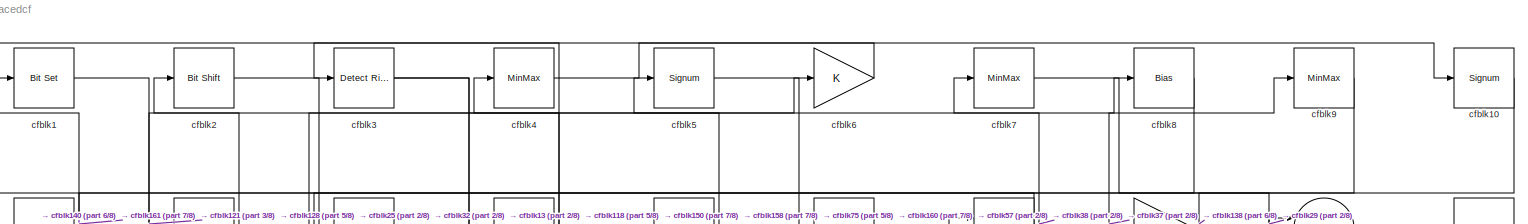
[diagram: root canvas - part 1/8, full width, top band]
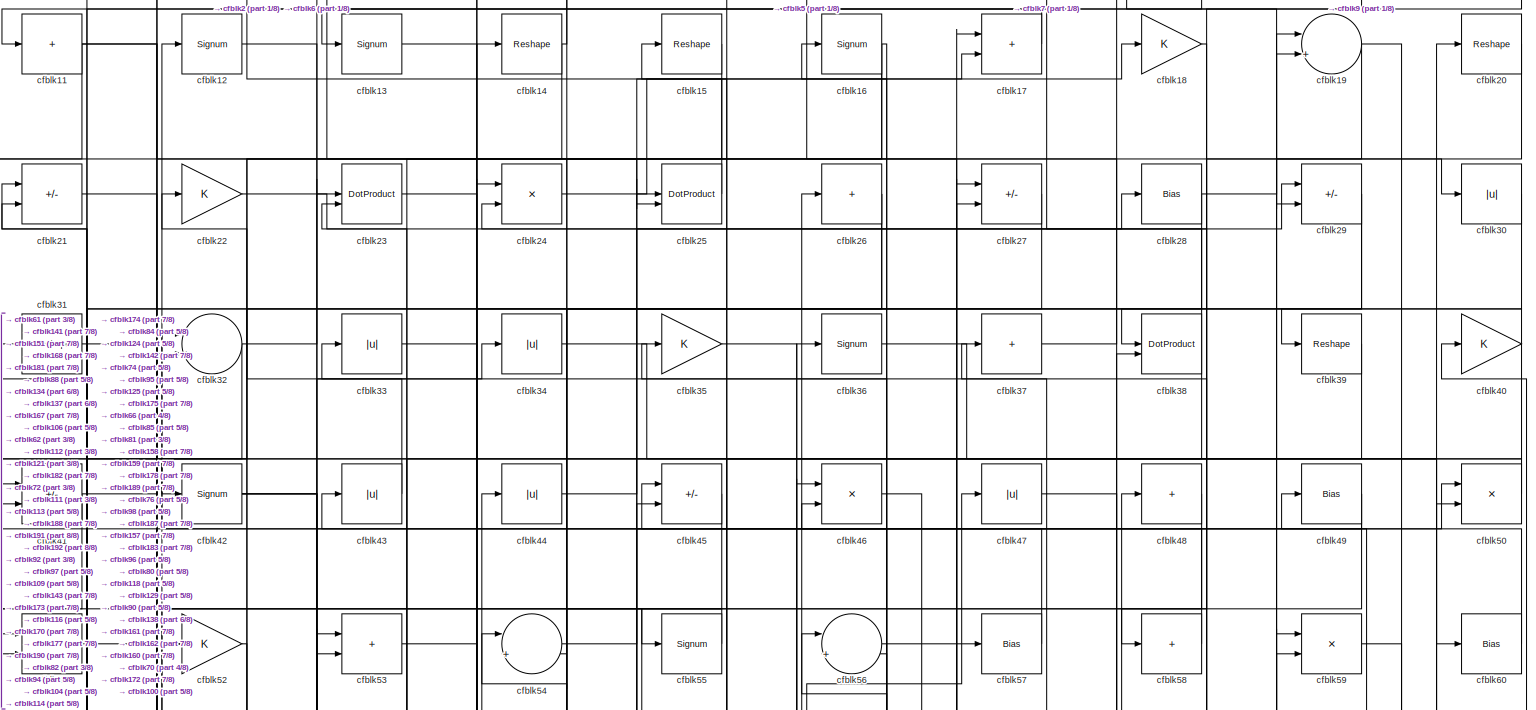
[diagram: root canvas - part 2/8, full width, top band]
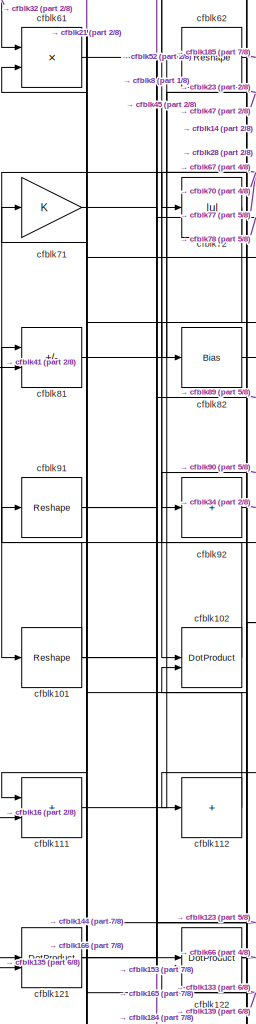
[diagram: root canvas - part 3/8, middle left region]
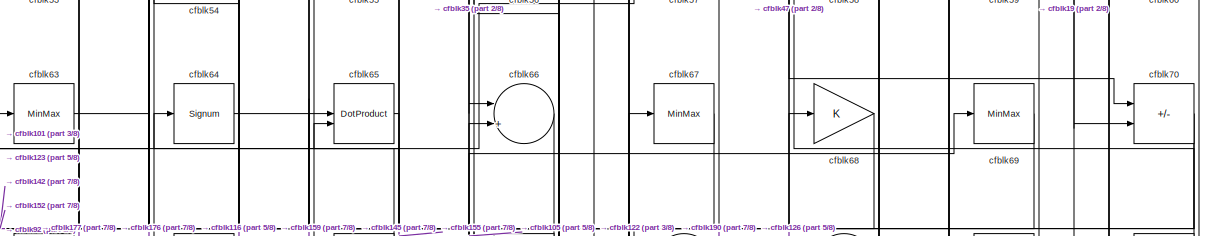
[diagram: root canvas - part 4/8, full width, top band]
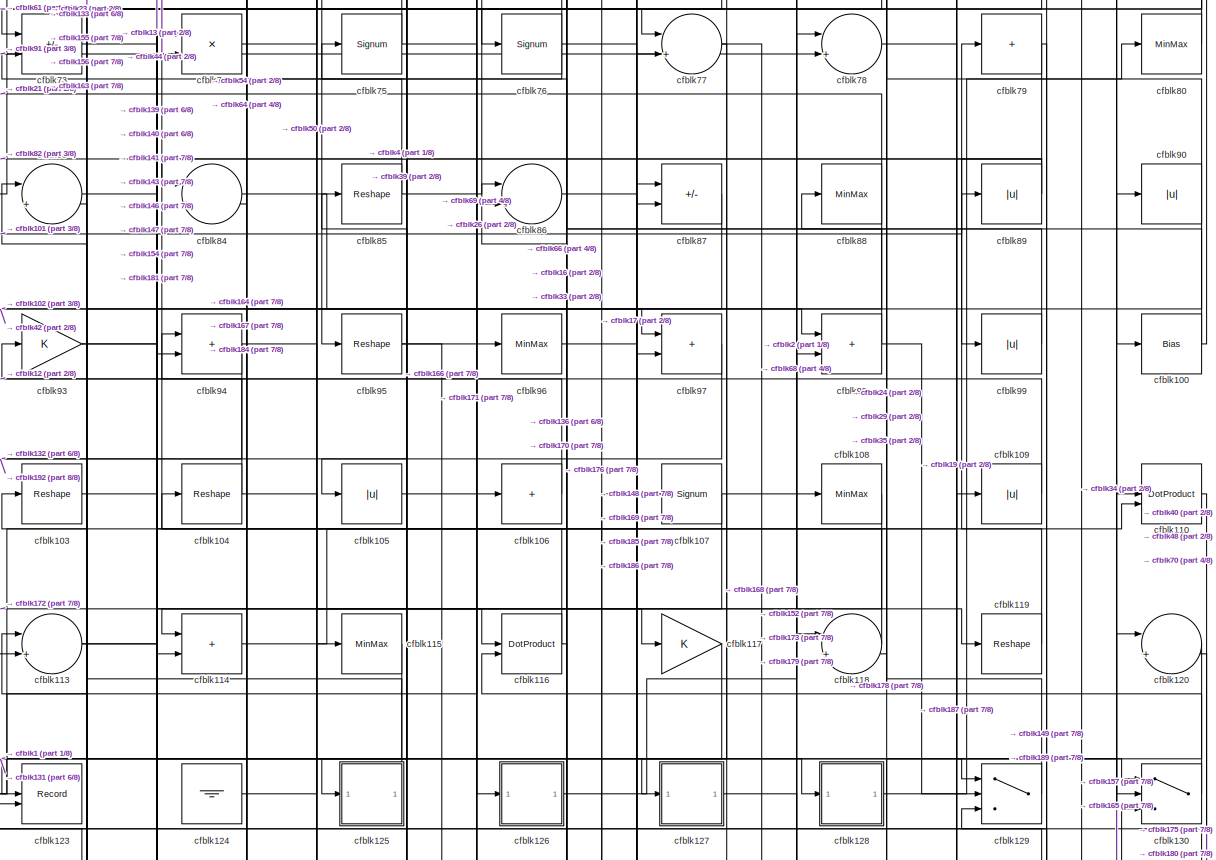
[diagram: root canvas - part 5/8, full width, middle band]
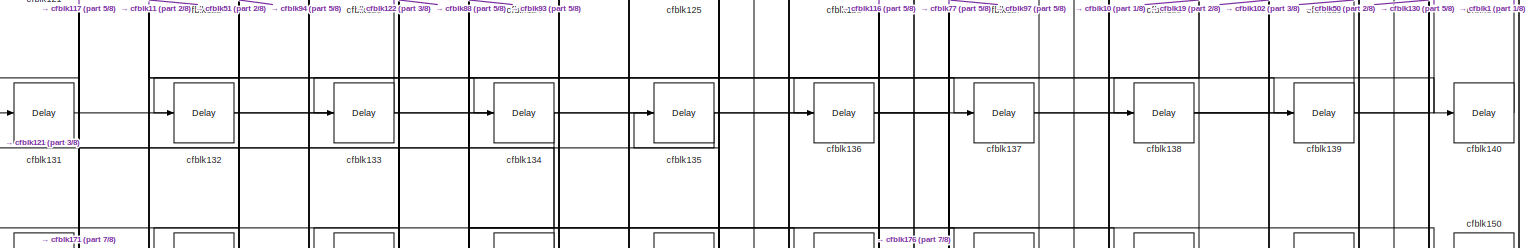
[diagram: root canvas - part 6/8, full width, bottom band]
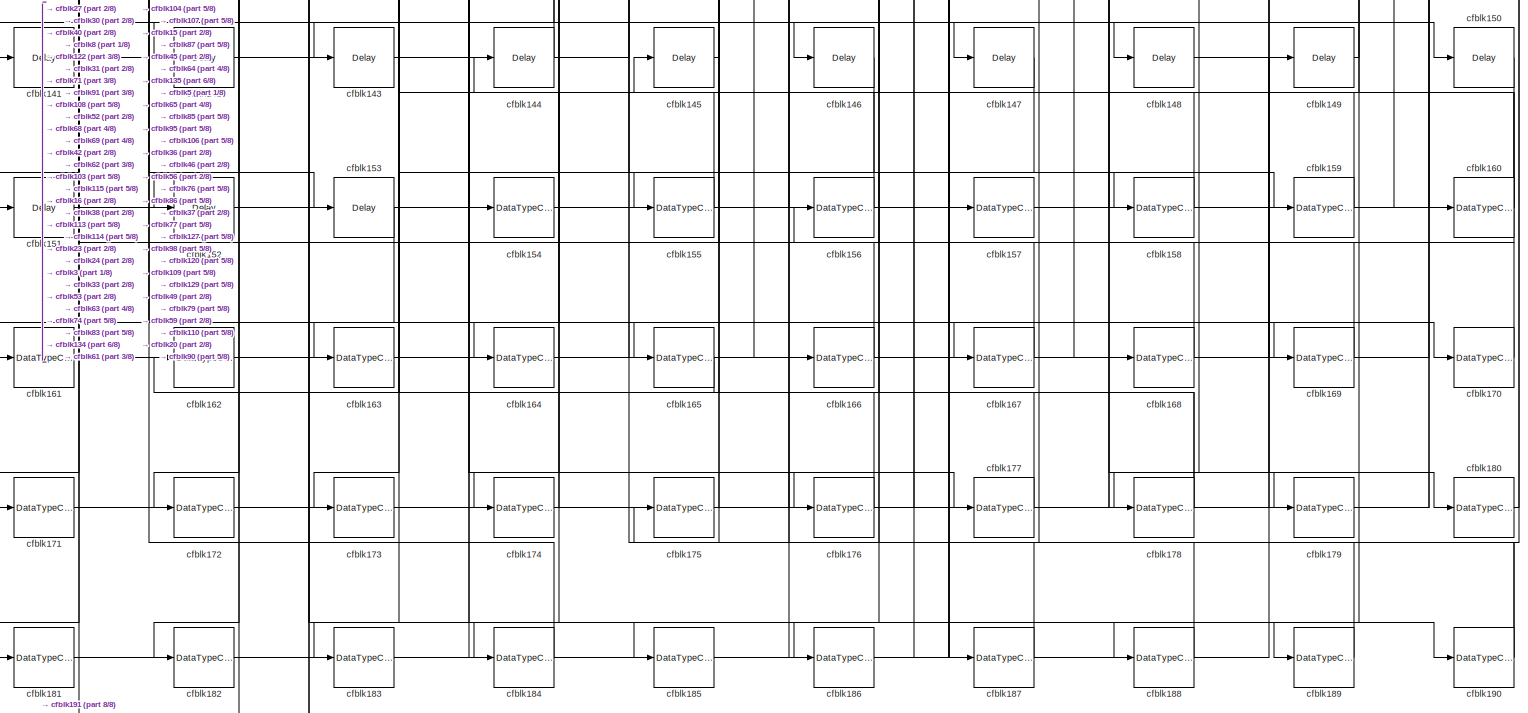
[diagram: root canvas - part 7/8, full width, bottom band]
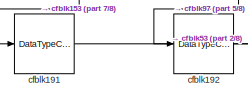
[diagram: root canvas - part 8/8, bottom left region]
MODEL slx_7cf879acedcf
KIND model
CONFIG AbsTol = auto
CONFIG EnableMultiTasking = off
CONFIG FixedStep = auto
CONFIG MaxStep = auto
CONFIG MinStep = auto
CONFIG RelTol = 1e-3
CONFIG SampleTimeConstraint = Unconstrained
CONFIG SolverName = VariableStepAuto
CONFIG StartTime = 0.0
CONFIG StopTime = 10.0
BLOCK [Reference] cfblk1  REF=simulink/Logic and Bit
Operations/Bit Set
  LibrarySourceBlock = hdlsllib/Logic and Bit\nOperations/Bit Set
  SourceBlock = simulink/Logic and Bit\nOperations/Bit Set
  SourceType = Bit Set
BLOCK [Signum] cfblk10
BLOCK [Bias] cfblk100
  Bias = 0.0
  SaturateOnIntegerOverflow = off
BLOCK [Reshape] cfblk101
BLOCK [DotProduct] cfblk102
  OutDataTypeStr = Inherit: Inherit via internal rule
BLOCK [Reshape] cfblk103
BLOCK [Reshape] cfblk104
BLOCK [Abs] cfblk105
  SaturateOnIntegerOverflow = off
BLOCK [Sum] cfblk106
  IconShape = rectangular
  Inputs = +
BLOCK [Signum] cfblk107
BLOCK [MinMax] cfblk108
BLOCK [Abs] cfblk109
  SaturateOnIntegerOverflow = off
BLOCK [Sum] cfblk11
  IconShape = rectangular
  Inputs = +
BLOCK [DotProduct] cfblk110
  OutDataTypeStr = Inherit: Inherit via internal rule
BLOCK [Sum] cfblk111
  IconShape = rectangular
BLOCK [Sum] cfblk112
  IconShape = rectangular
  Inputs = +
BLOCK [Sum] cfblk113
  Inputs = |++
BLOCK [Sum] cfblk114
  IconShape = rectangular
BLOCK [MinMax] cfblk115
BLOCK [DotProduct] cfblk116
  OutDataTypeStr = Inherit: Inherit via internal rule
BLOCK [Gain] cfblk117
BLOCK [Sum] cfblk118
  Inputs = |++
BLOCK [Reshape] cfblk119
BLOCK [Signum] cfblk12
BLOCK [Sum] cfblk120
  Inputs = |++
BLOCK [DotProduct] cfblk121
  OutDataTypeStr = Inherit: Inherit via internal rule
BLOCK [DotProduct] cfblk122
  OutDataTypeStr = Inherit: Inherit via internal rule
BLOCK [Record] cfblk123
  CompatibilityTag = XY
  FileSettingsInternal = {"entries":[{"content":{"excelSettings":{"content":{},"type":"Streamout.ExcelSettings"}},"type":"Streamout.FileSettingStorage","uuid":""}],"packageUris":["http:\/\/schema.mathworks.com\/mf0\/streamout_blocks\/R2020a"],"version":"1.0"}
  Layout = [1 1]
  SignalsInternal = {"entries":[{"content":{"signals":[{"content":{"blockPath":[],"dimensions":[1],"domain":"","lineColor":"#a2142f","plots":[1],"port":1,"signalID":5757,"signalName":"XY Graph:1"},"type":"RecordBlkView.Signal","uuid":""},{"content":{"blockPath":[],"dimensions":[1],"domain":"","lineColor":"#139fff","plots":[1],"port":2,"signalID":5760,"signalName":"XY Graph:2"},"type":"RecordBlkView.Signal","uuid":""}...<+146ch>
  VisualizationBindings = {"xyplotplugin":{"info":[{"series":[{"bindingParametersList":[{"parameter":"X-Axis","signalID":5757,"signalName":"XY Graph:1"},{"parameter":"Y-Axis","signalID":5760,"signalName":"XY Graph:2"}],"seriesID":6724}],"subplotID":1}]}}
  st = -1
BLOCK [Ground] cfblk124
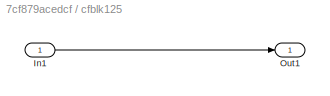
BLOCK [SubSystem] cfblk125
  LibrarySourceBlock = hdlsllib/Ports &\nSubsystems/Subsystem
BLOCK [Inport] cfblk125/In1
BLOCK [Outport] cfblk125/Out1
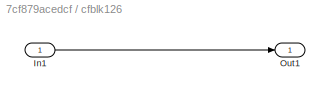
BLOCK [SubSystem] cfblk126
  LibrarySourceBlock = hdlsllib/Ports &\nSubsystems/Subsystem
BLOCK [Inport] cfblk126/In1
BLOCK [Outport] cfblk126/Out1
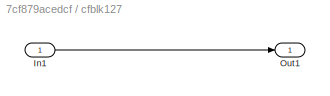
BLOCK [SubSystem] cfblk127
  LibrarySourceBlock = hdlsllib/Ports &\nSubsystems/Subsystem
BLOCK [Inport] cfblk127/In1
BLOCK [Outport] cfblk127/Out1
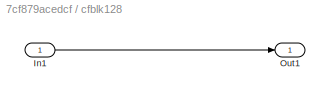
BLOCK [SubSystem] cfblk128
  LibrarySourceBlock = hdlsllib/Ports &\nSubsystems/Subsystem
BLOCK [Inport] cfblk128/In1
BLOCK [Outport] cfblk128/Out1
BLOCK [Switch] cfblk129
  InputSameDT = off
  SaturateOnIntegerOverflow = off
BLOCK [Signum] cfblk13
BLOCK [Switch] cfblk130
  InputSameDT = off
  SaturateOnIntegerOverflow = off
BLOCK [Delay] cfblk131
  InputPortMap = u0
  SampleTime = 1
BLOCK [Delay] cfblk132
  InputPortMap = u0
  SampleTime = 1
BLOCK [Delay] cfblk133
  InputPortMap = u0
  SampleTime = 1
BLOCK [Delay] cfblk134
  InputPortMap = u0
  SampleTime = 1
BLOCK [Delay] cfblk135
  InputPortMap = u0
  SampleTime = 1
BLOCK [Delay] cfblk136
  InputPortMap = u0
  SampleTime = 1
BLOCK [Delay] cfblk137
  InputPortMap = u0
  SampleTime = 1
BLOCK [Delay] cfblk138
  InputPortMap = u0
  SampleTime = 1
BLOCK [Delay] cfblk139
  InputPortMap = u0
  SampleTime = 1
BLOCK [Reshape] cfblk14
BLOCK [Delay] cfblk140
  InputPortMap = u0
  SampleTime = 1
BLOCK [Delay] cfblk141
  InputPortMap = u0
  SampleTime = 1
BLOCK [Delay] cfblk142
  InputPortMap = u0
  SampleTime = 1
BLOCK [Delay] cfblk143
  InputPortMap = u0
  SampleTime = 1
BLOCK [Delay] cfblk144
  InputPortMap = u0
  SampleTime = 1
BLOCK [Delay] cfblk145
  InputPortMap = u0
  SampleTime = 1
BLOCK [Delay] cfblk146
  InputPortMap = u0
  SampleTime = 1
BLOCK [Delay] cfblk147
  InputPortMap = u0
  SampleTime = 1
BLOCK [Delay] cfblk148
  InputPortMap = u0
  SampleTime = 1
BLOCK [Delay] cfblk149
  InputPortMap = u0
  SampleTime = 1
BLOCK [Reshape] cfblk15
BLOCK [Delay] cfblk150
  InputPortMap = u0
  SampleTime = 1
BLOCK [Delay] cfblk151
  InputPortMap = u0
  SampleTime = 1
BLOCK [Delay] cfblk152
  InputPortMap = u0
  SampleTime = 1
BLOCK [Delay] cfblk153
  InputPortMap = u0
  SampleTime = 1
BLOCK [DataTypeConversion] cfblk154
  OutDataTypeStr = uint8
  RndMeth = Floor
  SaturateOnIntegerOverflow = off
BLOCK [DataTypeConversion] cfblk155
  OutDataTypeStr = uint8
  RndMeth = Floor
  SaturateOnIntegerOverflow = off
BLOCK [DataTypeConversion] cfblk156
  OutDataTypeStr = uint8
  RndMeth = Floor
  SaturateOnIntegerOverflow = off
BLOCK [DataTypeConversion] cfblk157
  OutDataTypeStr = uint8
  RndMeth = Floor
  SaturateOnIntegerOverflow = off
BLOCK [DataTypeConversion] cfblk158
  OutDataTypeStr = uint8
  RndMeth = Floor
  SaturateOnIntegerOverflow = off
BLOCK [DataTypeConversion] cfblk159
  OutDataTypeStr = uint8
  RndMeth = Floor
  SaturateOnIntegerOverflow = off
BLOCK [Signum] cfblk16
BLOCK [DataTypeConversion] cfblk160
  RndMeth = Floor
  SaturateOnIntegerOverflow = off
BLOCK [DataTypeConversion] cfblk161
  OutDataTypeStr = uint8
  RndMeth = Floor
  SaturateOnIntegerOverflow = off
BLOCK [DataTypeConversion] cfblk162
  OutDataTypeStr = uint8
  RndMeth = Floor
  SaturateOnIntegerOverflow = off
BLOCK [DataTypeConversion] cfblk163
  OutDataTypeStr = uint8
  RndMeth = Floor
  SaturateOnIntegerOverflow = off
BLOCK [DataTypeConversion] cfblk164
  OutDataTypeStr = uint8
  RndMeth = Floor
  SaturateOnIntegerOverflow = off
BLOCK [DataTypeConversion] cfblk165
  RndMeth = Floor
  SaturateOnIntegerOverflow = off
BLOCK [DataTypeConversion] cfblk166
  OutDataTypeStr = uint8
  RndMeth = Floor
  SaturateOnIntegerOverflow = off
BLOCK [DataTypeConversion] cfblk167
  OutDataTypeStr = uint8
  RndMeth = Floor
  SaturateOnIntegerOverflow = off
BLOCK [DataTypeConversion] cfblk168
  OutDataTypeStr = uint8
  RndMeth = Floor
  SaturateOnIntegerOverflow = off
BLOCK [DataTypeConversion] cfblk169
  OutDataTypeStr = uint8
  RndMeth = Floor
  SaturateOnIntegerOverflow = off
BLOCK [Sum] cfblk17
  IconShape = rectangular
BLOCK [DataTypeConversion] cfblk170
  OutDataTypeStr = uint8
  RndMeth = Floor
  SaturateOnIntegerOverflow = off
BLOCK [DataTypeConversion] cfblk171
  OutDataTypeStr = uint8
  RndMeth = Floor
  SaturateOnIntegerOverflow = off
BLOCK [DataTypeConversion] cfblk172
  OutDataTypeStr = uint8
  RndMeth = Floor
  SaturateOnIntegerOverflow = off
BLOCK [DataTypeConversion] cfblk173
  OutDataTypeStr = uint8
  RndMeth = Floor
  SaturateOnIntegerOverflow = off
BLOCK [DataTypeConversion] cfblk174
  RndMeth = Floor
  SaturateOnIntegerOverflow = off
BLOCK [DataTypeConversion] cfblk175
  OutDataTypeStr = uint8
  RndMeth = Floor
  SaturateOnIntegerOverflow = off
BLOCK [DataTypeConversion] cfblk176
  RndMeth = Floor
  SaturateOnIntegerOverflow = off
BLOCK [DataTypeConversion] cfblk177
  OutDataTypeStr = uint8
  RndMeth = Floor
  SaturateOnIntegerOverflow = off
BLOCK [DataTypeConversion] cfblk178
  RndMeth = Floor
  SaturateOnIntegerOverflow = off
BLOCK [DataTypeConversion] cfblk179
  OutDataTypeStr = uint8
  RndMeth = Floor
  SaturateOnIntegerOverflow = off
BLOCK [Gain] cfblk18
BLOCK [DataTypeConversion] cfblk180
  OutDataTypeStr = uint8
  RndMeth = Floor
  SaturateOnIntegerOverflow = off
BLOCK [DataTypeConversion] cfblk181
  RndMeth = Floor
  SaturateOnIntegerOverflow = off
BLOCK [DataTypeConversion] cfblk182
  OutDataTypeStr = uint8
  RndMeth = Floor
  SaturateOnIntegerOverflow = off
BLOCK [DataTypeConversion] cfblk183
  OutDataTypeStr = uint8
  RndMeth = Floor
  SaturateOnIntegerOverflow = off
BLOCK [DataTypeConversion] cfblk184
  OutDataTypeStr = uint8
  RndMeth = Floor
  SaturateOnIntegerOverflow = off
BLOCK [DataTypeConversion] cfblk185
  OutDataTypeStr = uint8
  RndMeth = Floor
  SaturateOnIntegerOverflow = off
BLOCK [DataTypeConversion] cfblk186
  OutDataTypeStr = uint8
  RndMeth = Floor
  SaturateOnIntegerOverflow = off
BLOCK [DataTypeConversion] cfblk187
  RndMeth = Floor
  SaturateOnIntegerOverflow = off
BLOCK [DataTypeConversion] cfblk188
  OutDataTypeStr = uint8
  RndMeth = Floor
  SaturateOnIntegerOverflow = off
BLOCK [DataTypeConversion] cfblk189
  OutDataTypeStr = uint8
  RndMeth = Floor
  SaturateOnIntegerOverflow = off
BLOCK [Sum] cfblk19
  Inputs = |++
BLOCK [DataTypeConversion] cfblk190
  RndMeth = Floor
  SaturateOnIntegerOverflow = off
BLOCK [DataTypeConversion] cfblk191
  OutDataTypeStr = uint8
  RndMeth = Floor
  SaturateOnIntegerOverflow = off
BLOCK [DataTypeConversion] cfblk192
  OutDataTypeStr = uint8
  RndMeth = Floor
  SaturateOnIntegerOverflow = off
BLOCK [Reference] cfblk2  REF=hdlsllib/Logic and Bit
Operations/Bit Shift
  SourceBlock = hdlsllib/Logic and Bit\nOperations/Bit Shift
  SourceType = Bit Shift
BLOCK [Reshape] cfblk20
BLOCK [Sum] cfblk21
  IconShape = rectangular
  Inputs = +-
BLOCK [Gain] cfblk22
BLOCK [DotProduct] cfblk23
  OutDataTypeStr = Inherit: Inherit via internal rule
BLOCK [Product] cfblk24
  Inputs = */
  RndMeth = Zero
  SaturateOnIntegerOverflow = on
BLOCK [DotProduct] cfblk25
  OutDataTypeStr = Inherit: Inherit via internal rule
BLOCK [Sum] cfblk26
  IconShape = rectangular
  Inputs = +
BLOCK [Sum] cfblk27
  IconShape = rectangular
  Inputs = +-
BLOCK [Bias] cfblk28
  Bias = 0.0
  SaturateOnIntegerOverflow = off
BLOCK [Sum] cfblk29
  IconShape = rectangular
  Inputs = +-
BLOCK [Reference] cfblk3  REF=hdlsllib/Logic and Bit
Operations/Detect Rise
Nonnegative
  SourceBlock = hdlsllib/Logic and Bit\nOperations/Detect Rise\nNonnegative
  SourceType = Detect Rise Nonnegative
BLOCK [Abs] cfblk30
  SaturateOnIntegerOverflow = off
BLOCK [Reshape] cfblk31
BLOCK [Sum] cfblk32
  Inputs = |++
BLOCK [Abs] cfblk33
  SaturateOnIntegerOverflow = off
BLOCK [Abs] cfblk34
  SaturateOnIntegerOverflow = off
BLOCK [Gain] cfblk35
BLOCK [Signum] cfblk36
BLOCK [Sum] cfblk37
  IconShape = rectangular
  Inputs = +
BLOCK [DotProduct] cfblk38
  OutDataTypeStr = Inherit: Inherit via internal rule
BLOCK [Reshape] cfblk39
BLOCK [MinMax] cfblk4
BLOCK [Gain] cfblk40
BLOCK [Sum] cfblk41
  IconShape = rectangular
  Inputs = +-
BLOCK [Signum] cfblk42
BLOCK [Abs] cfblk43
  SaturateOnIntegerOverflow = off
BLOCK [Abs] cfblk44
  SaturateOnIntegerOverflow = off
BLOCK [Sum] cfblk45
  IconShape = rectangular
  Inputs = +-
BLOCK [Product] cfblk46
  Inputs = */
  RndMeth = Zero
  SaturateOnIntegerOverflow = on
BLOCK [Abs] cfblk47
  SaturateOnIntegerOverflow = off
BLOCK [Sum] cfblk48
  IconShape = rectangular
  Inputs = +
BLOCK [Bias] cfblk49
  Bias = 0.0
  SaturateOnIntegerOverflow = off
BLOCK [Signum] cfblk5
BLOCK [Product] cfblk50
  Inputs = */
  RndMeth = Zero
  SaturateOnIntegerOverflow = on
BLOCK [Sum] cfblk51
  IconShape = rectangular
BLOCK [Gain] cfblk52
BLOCK [Sum] cfblk53
  IconShape = rectangular
BLOCK [Sum] cfblk54
  Inputs = |++
BLOCK [Signum] cfblk55
BLOCK [Sum] cfblk56
  Inputs = |++
BLOCK [Bias] cfblk57
  Bias = 0.0
  SaturateOnIntegerOverflow = off
BLOCK [Sum] cfblk58
  IconShape = rectangular
  Inputs = +
BLOCK [Product] cfblk59
  Inputs = */
  RndMeth = Zero
  SaturateOnIntegerOverflow = on
BLOCK [Gain] cfblk6
BLOCK [Bias] cfblk60
  Bias = 0.0
  SaturateOnIntegerOverflow = off
BLOCK [Product] cfblk61
  Inputs = */
  RndMeth = Zero
  SaturateOnIntegerOverflow = on
BLOCK [Reshape] cfblk62
BLOCK [MinMax] cfblk63
BLOCK [Signum] cfblk64
BLOCK [DotProduct] cfblk65
  OutDataTypeStr = Inherit: Inherit via internal rule
BLOCK [Sum] cfblk66
  Inputs = |++
BLOCK [MinMax] cfblk67
BLOCK [Gain] cfblk68
BLOCK [MinMax] cfblk69
BLOCK [MinMax] cfblk7
BLOCK [Sum] cfblk70
  IconShape = rectangular
  Inputs = +-
BLOCK [Gain] cfblk71
BLOCK [Abs] cfblk72
  SaturateOnIntegerOverflow = off
BLOCK [Sum] cfblk73
  IconShape = rectangular
  Inputs = +-
BLOCK [Product] cfblk74
  Inputs = */
  RndMeth = Zero
  SaturateOnIntegerOverflow = on
BLOCK [Signum] cfblk75
BLOCK [Signum] cfblk76
BLOCK [Sum] cfblk77
  Inputs = |++
BLOCK [Sum] cfblk78
  Inputs = |++
BLOCK [Sum] cfblk79
  IconShape = rectangular
  Inputs = +
BLOCK [Bias] cfblk8
  Bias = 0.0
  SaturateOnIntegerOverflow = off
BLOCK [MinMax] cfblk80
BLOCK [Sum] cfblk81
  IconShape = rectangular
  Inputs = +-
BLOCK [Bias] cfblk82
  Bias = 0.0
  SaturateOnIntegerOverflow = off
BLOCK [Sum] cfblk83
  Inputs = |++
BLOCK [Sum] cfblk84
  Inputs = |++
BLOCK [Reshape] cfblk85
BLOCK [Sum] cfblk86
  Inputs = |++
BLOCK [Sum] cfblk87
  IconShape = rectangular
  Inputs = +-
BLOCK [MinMax] cfblk88
BLOCK [Abs] cfblk89
  SaturateOnIntegerOverflow = off
BLOCK [MinMax] cfblk9
BLOCK [Abs] cfblk90
  SaturateOnIntegerOverflow = off
BLOCK [Reshape] cfblk91
BLOCK [Sum] cfblk92
  IconShape = rectangular
  Inputs = +
BLOCK [Gain] cfblk93
BLOCK [Sum] cfblk94
  IconShape = rectangular
BLOCK [Reshape] cfblk95
BLOCK [MinMax] cfblk96
BLOCK [Sum] cfblk97
  IconShape = rectangular
BLOCK [Sum] cfblk98
  IconShape = rectangular
BLOCK [Abs] cfblk99
  SaturateOnIntegerOverflow = off
NET cfblk100:1 -> cfblk40:1, cfblk75:1
NET cfblk101:1 -> cfblk123:1, cfblk89:1, cfblk91:1
LINE cfblk102:1 -> cfblk81:1
LINE cfblk103:1 -> cfblk110:2
NET cfblk104:1 -> cfblk119:1, cfblk44:1
LINE cfblk105:1 -> cfblk69:1
LINE cfblk106:1 -> cfblk12:1
NET cfblk107:1 -> cfblk164:1, cfblk78:1
LINE cfblk108:1 -> cfblk172:1
LINE cfblk109:1 -> cfblk23:2
LINE cfblk10:1 -> cfblk138:1
LINE cfblk110:1 -> cfblk175:1
LINE cfblk111:1 -> cfblk23:1
LINE cfblk112:1 -> cfblk21:1
NET cfblk113:1 -> cfblk146:1, cfblk147:1
LINE cfblk114:1 -> cfblk19:2
LINE cfblk115:1 -> cfblk163:1
NET cfblk116:1 -> cfblk136:1, cfblk64:1
LINE cfblk117:1 -> cfblk131:1
LINE cfblk118:1 -> cfblk94:1
LINE cfblk119:1 -> cfblk79:1
NET cfblk11:1 -> cfblk137:1, cfblk25:2, cfblk51:2
LINE cfblk120:1 -> cfblk178:1
NET cfblk121:1 -> cfblk52:1, cfblk8:1
NET cfblk122:1 -> cfblk66:2, cfblk67:1
LINE cfblk124:1 -> cfblk17:2
LINE cfblk125/In1:1 -> cfblk125/Out1:1
LINE cfblk125:1 -> cfblk93:1
LINE cfblk126/In1:1 -> cfblk126/Out1:1
LINE cfblk126:1 -> cfblk68:1
LINE cfblk127/In1:1 -> cfblk127/Out1:1
LINE cfblk127:1 -> cfblk179:1
LINE cfblk128/In1:1 -> cfblk128/Out1:1
LINE cfblk128:1 -> cfblk80:1
LINE cfblk129:1 -> cfblk24:2
LINE cfblk12:1 -> cfblk129:1
LINE cfblk130:1 -> cfblk116:2
LINE cfblk131:1 -> cfblk97:2
LINE cfblk132:1 -> cfblk77:2
LINE cfblk133:1 -> cfblk122:2
LINE cfblk134:1 -> cfblk171:1
LINE cfblk135:1 -> cfblk121:2
LINE cfblk136:1 -> cfblk130:3
LINE cfblk137:1 -> cfblk50:2
LINE cfblk138:1 -> cfblk19:1
LINE cfblk139:1 -> cfblk102:2
LINE cfblk13:1 -> cfblk116:1
LINE cfblk140:1 -> cfblk1:1
LINE cfblk141:1 -> cfblk114:2
LINE cfblk142:1 -> cfblk45:2
LINE cfblk143:1 -> cfblk74:2
LINE cfblk144:1 -> cfblk61:2
LINE cfblk145:1 -> cfblk65:2
LINE cfblk146:1 -> cfblk183:1
LINE cfblk147:1 -> cfblk186:1
LINE cfblk148:1 -> cfblk180:1
LINE cfblk149:1 -> cfblk129:3
NET cfblk14:1 -> cfblk121:1, cfblk72:1
LINE cfblk150:1 -> cfblk156:1
LINE cfblk151:1 -> cfblk24:1
LINE cfblk152:1 -> cfblk98:2
LINE cfblk153:1 -> cfblk191:1
LINE cfblk154:1 -> cfblk106:1
LINE cfblk155:1 -> cfblk83:1
LINE cfblk156:1 -> cfblk83:2
LINE cfblk157:1 -> cfblk90:1
LINE cfblk158:1 -> cfblk56:1
LINE cfblk159:1 -> cfblk56:2
LINE cfblk15:1 -> cfblk174:1
NET cfblk160:1 -> cfblk49:1, cfblk5:1
LINE cfblk161:1 -> cfblk59:1
LINE cfblk162:1 -> cfblk59:2
LINE cfblk163:1 -> cfblk103:1
LINE cfblk164:1 -> cfblk115:1
NET cfblk165:1 -> cfblk110:1, cfblk162:1
LINE cfblk166:1 -> cfblk71:1
LINE cfblk167:1 -> cfblk104:1
LINE cfblk168:1 -> cfblk31:1
LINE cfblk169:1 -> cfblk85:1
NET cfblk16:1 -> cfblk111:2, cfblk173:1, cfblk76:1
LINE cfblk170:1 -> cfblk86:1
LINE cfblk171:1 -> cfblk86:2
LINE cfblk172:1 -> cfblk20:1
LINE cfblk173:1 -> cfblk108:1
NET cfblk174:1 -> cfblk144:1, cfblk38:2
LINE cfblk175:1 -> cfblk15:1
NET cfblk176:1 -> cfblk107:1, cfblk135:1
LINE cfblk177:1 -> cfblk63:1
NET cfblk178:1 -> cfblk113:1, cfblk149:1, cfblk16:1
LINE cfblk179:1 -> cfblk120:1
LINE cfblk17:1 -> cfblk11:1
LINE cfblk180:1 -> cfblk120:2
NET cfblk181:1 -> cfblk36:1, cfblk74:1
LINE cfblk182:1 -> cfblk27:1
LINE cfblk183:1 -> cfblk27:2
LINE cfblk184:1 -> cfblk122:1
LINE cfblk185:1 -> cfblk87:1
LINE cfblk186:1 -> cfblk87:2
NET cfblk187:1 -> cfblk109:1, cfblk145:1
LINE cfblk188:1 -> cfblk46:1
LINE cfblk189:1 -> cfblk46:2
LINE cfblk18:1 -> cfblk58:1
NET cfblk190:1 -> cfblk37:1, cfblk65:1
LINE cfblk191:1 -> cfblk53:1
LINE cfblk192:1 -> cfblk53:2
NET cfblk19:1 -> cfblk42:1, cfblk70:2
LINE cfblk1:1 -> cfblk128:1
LINE cfblk20:1 -> cfblk38:1
LINE cfblk21:1 -> cfblk55:1
LINE cfblk22:1 -> cfblk28:1
LINE cfblk23:1 -> cfblk177:1
LINE cfblk24:1 -> cfblk18:1
LINE cfblk25:1 -> cfblk2:1
NET cfblk26:1 -> cfblk114:1, cfblk84:2
LINE cfblk27:1 -> cfblk181:1
NET cfblk28:1 -> cfblk112:1, cfblk30:1
NET cfblk29:1 -> cfblk118:2, cfblk94:2
LINE cfblk2:1 -> cfblk118:1
LINE cfblk30:1 -> cfblk151:1
LINE cfblk31:1 -> cfblk167:1
NET cfblk32:1 -> cfblk61:1, cfblk6:1
LINE cfblk33:1 -> cfblk170:1
LINE cfblk34:1 -> cfblk100:1
LINE cfblk35:1 -> cfblk66:1
LINE cfblk36:1 -> cfblk60:1
LINE cfblk37:1 -> cfblk9:1
NET cfblk38:1 -> cfblk143:1, cfblk7:1
LINE cfblk39:1 -> cfblk125:1
NET cfblk3:1 -> cfblk150:1, cfblk158:1
NET cfblk40:1 -> cfblk141:1, cfblk39:1
NET cfblk41:1 -> cfblk32:2, cfblk81:2
NET cfblk42:1 -> cfblk113:2, cfblk188:1, cfblk97:1
LINE cfblk43:1 -> cfblk22:1
LINE cfblk44:1 -> cfblk29:1
LINE cfblk45:1 -> cfblk62:1
LINE cfblk46:1 -> cfblk187:1
LINE cfblk47:1 -> cfblk70:1
LINE cfblk48:1 -> cfblk95:1
NET cfblk49:1 -> cfblk41:2, cfblk54:2
LINE cfblk4:1 -> cfblk10:1
LINE cfblk50:1 -> cfblk41:1
LINE cfblk51:1 -> cfblk134:1
LINE cfblk52:1 -> cfblk182:1
LINE cfblk53:1 -> cfblk190:1
LINE cfblk54:1 -> cfblk25:1
LINE cfblk55:1 -> cfblk51:1
LINE cfblk56:1 -> cfblk157:1
LINE cfblk57:1 -> cfblk43:1
LINE cfblk58:1 -> cfblk45:1
LINE cfblk59:1 -> cfblk160:1
LINE cfblk5:1 -> cfblk57:1
LINE cfblk60:1 -> cfblk32:1
LINE cfblk61:1 -> cfblk77:1
LINE cfblk62:1 -> cfblk185:1
LINE cfblk63:1 -> cfblk176:1
LINE cfblk64:1 -> cfblk159:1
LINE cfblk65:1 -> cfblk155:1
LINE cfblk66:1 -> cfblk105:1
LINE cfblk67:1 -> cfblk101:1
LINE cfblk68:1 -> cfblk152:1
LINE cfblk69:1 -> cfblk142:1
LINE cfblk6:1 -> cfblk3:1
NET cfblk70:1 -> cfblk123:2, cfblk92:1
LINE cfblk71:1 -> cfblk165:1
LINE cfblk72:1 -> cfblk111:1
LINE cfblk73:1 -> cfblk130:2
LINE cfblk74:1 -> cfblk50:1
NET cfblk75:1 -> cfblk4:1, cfblk96:1
NET cfblk76:1 -> cfblk148:1, cfblk73:1, cfblk73:2
NET cfblk77:1 -> cfblk127:1, cfblk168:1
LINE cfblk78:1 -> cfblk130:1
NET cfblk79:1 -> cfblk189:1, cfblk99:1
LINE cfblk7:1 -> cfblk29:2
LINE cfblk80:1 -> cfblk48:1
LINE cfblk81:1 -> cfblk47:1
LINE cfblk82:1 -> cfblk14:1
LINE cfblk83:1 -> cfblk154:1
LINE cfblk84:1 -> cfblk126:1
NET cfblk85:1 -> cfblk26:1, cfblk54:1
LINE cfblk86:1 -> cfblk169:1
LINE cfblk87:1 -> cfblk184:1
NET cfblk88:1 -> cfblk133:1, cfblk21:2
NET cfblk89:1 -> cfblk82:1, cfblk84:1
LINE cfblk8:1 -> cfblk161:1
NET cfblk90:1 -> cfblk102:1, cfblk35:1
NET cfblk91:1 -> cfblk153:1, cfblk78:2
LINE cfblk92:1 -> cfblk34:1
NET cfblk93:1 -> cfblk139:1, cfblk140:1
NET cfblk94:1 -> cfblk117:1, cfblk132:1
NET cfblk95:1 -> cfblk166:1, cfblk98:1
LINE cfblk96:1 -> cfblk17:1
LINE cfblk97:1 -> cfblk192:1
NET cfblk98:1 -> cfblk129:2, cfblk33:1
LINE cfblk99:1 -> cfblk88:1
LINE cfblk9:1 -> cfblk13:1
note: NET lines group one-source signal fan-out (src -> all destinations, sorted); 1:1 wires keep LINE
